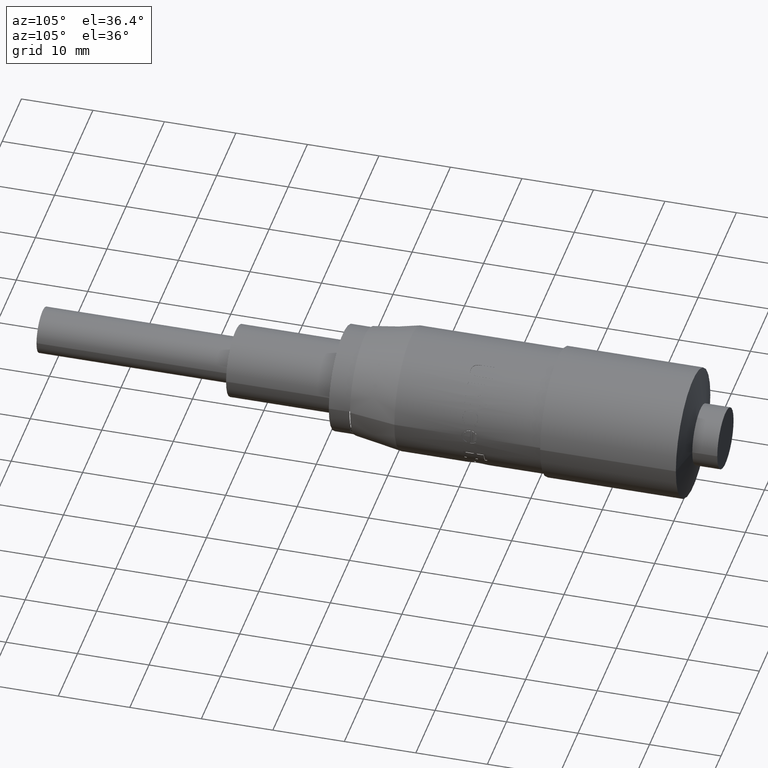
[diagram: clean part render]
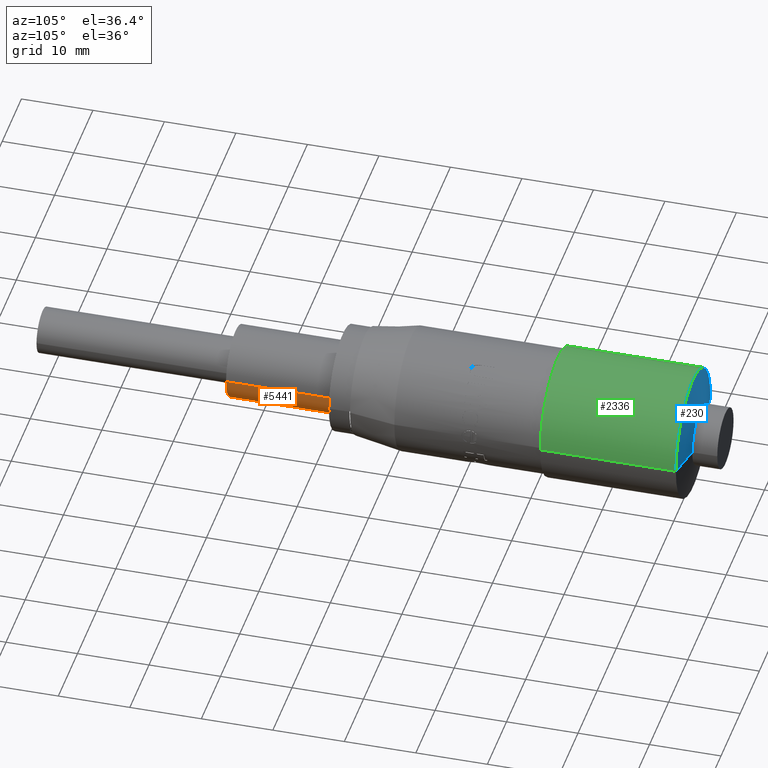
[diagram: same view with three faces highlighted in distinct colors, each labeled with its STEP entity id]
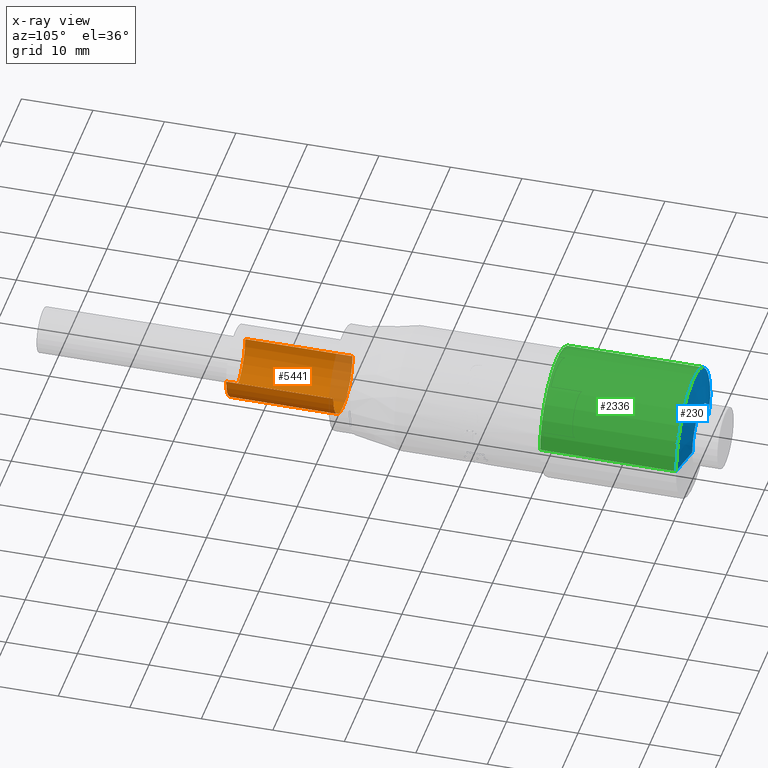
[diagram: x-ray of the same camera — body ghosted, the three highlighted faces saturated]
A machine part, auxiliary view with three faces highlighted in distinct colors.
The next image is the same camera in x-ray (body ghosted, the three faces saturated) — at least one of them is partly hidden behind the body in this view.
Their STEP definitions:

[orange] entity #5441 — the highlighted cylindrical surface (partial cylindrical patch) has radius 5 mm, axis along (-0, 1, -0).
#275 = ORIENTED_EDGE ( 'NONE', *, *, #10739, .F. ) ;
#458 = CARTESIAN_POINT ( 'NONE',  ( 38.65296289245996100, 68.06720585310775100, 28.87709965591409000 ) ) ;
#478 = CARTESIAN_POINT ( 'NONE',  ( 28.65296289245997100, 12.02618278390013300, 28.87709965591409000 ) ) ;
#790 = DIRECTION ( 'NONE',  ( -1.000000000000000000, 0.0000000000000000000, 0.0000000000000000000 ) ) ;
#1078 = ORIENTED_EDGE ( 'NONE', *, *, #8787, .F. ) ;
#1089 = CARTESIAN_POINT ( 'NONE',  ( 33.65296289245996800, 12.02618278390013300, 28.87709965591409000 ) ) ;
#1370 = FACE_OUTER_BOUND ( 'NONE', #3913, .T. ) ;
#1648 = DIRECTION ( 'NONE',  ( -1.058937486943297600E-016, 1.000000000000000000, -0.0000000000000000000 ) ) ;
#1893 = AXIS2_PLACEMENT_3D ( 'NONE', #3174, #9372, #4077 ) ;
#1987 = DIRECTION ( 'NONE',  ( -1.000000000000000000, 0.0000000000000000000, 0.0000000000000000000 ) ) ;
#2492 = VERTEX_POINT ( 'NONE', #5704 ) ;
#2603 = LINE ( 'NONE', #9658, #4942 ) ;
#2928 = CIRCLE ( 'NONE', #1893, 4.999999999999997300 ) ;
#3174 = CARTESIAN_POINT ( 'NONE',  ( 33.65296289245996800, -2.973817216099867300, 28.87709965591409000 ) ) ;
#3475 = DIRECTION ( 'NONE',  ( -1.058937486943297600E-016, 1.000000000000000000, -0.0000000000000000000 ) ) ;
#3913 = EDGE_LOOP ( 'NONE', ( #1078, #5259, #7385, #275 ) ) ;
#4077 = DIRECTION ( 'NONE',  ( -1.000000000000000000, -8.673617379884040400E-017, 0.0000000000000000000 ) ) ;
#4314 = VECTOR ( 'NONE', #11041, 1000.000000000000000 ) ;
#4942 = VECTOR ( 'NONE', #3475, 1000.000000000000000 ) ;
#5259 = ORIENTED_EDGE ( 'NONE', *, *, #10872, .T. ) ;
#5441 = ADVANCED_FACE ( 'NONE', ( #1370 ), #7305, .T. ) ;
#5704 = CARTESIAN_POINT ( 'NONE',  ( 28.65296289245997100, -2.973817216099867700, 28.87709965591409000 ) ) ;
#5752 = CARTESIAN_POINT ( 'NONE',  ( 38.65296289245996800, -2.973817216099866800, 28.87709965591409000 ) ) ;
#6383 = EDGE_CURVE ( 'NONE', #2492, #9553, #2603, .T. ) ;
#6949 = CARTESIAN_POINT ( 'NONE',  ( 33.65296289245996100, 68.06720585310775100, 28.87709965591409000 ) ) ;
#7282 = DIRECTION ( 'NONE',  ( -1.058937486943297600E-016, 1.000000000000000000, -0.0000000000000000000 ) ) ;
#7305 = CYLINDRICAL_SURFACE ( 'NONE', #8153, 4.999999999999997300 ) ;
#7385 = ORIENTED_EDGE ( 'NONE', *, *, #6383, .T. ) ;
#7582 = CARTESIAN_POINT ( 'NONE',  ( 38.65296289245996800, 12.02618278390013300, 28.87709965591409000 ) ) ;
#7789 = VERTEX_POINT ( 'NONE', #7582 ) ;
#8153 = AXIS2_PLACEMENT_3D ( 'NONE', #6949, #1648, #790 ) ;
#8480 = CIRCLE ( 'NONE', #8638, 4.999999999999997300 ) ;
#8638 = AXIS2_PLACEMENT_3D ( 'NONE', #1089, #7282, #1987 ) ;
#8787 = EDGE_CURVE ( 'NONE', #9548, #7789, #9005, .T. ) ;
#9005 = LINE ( 'NONE', #458, #4314 ) ;
#9372 = DIRECTION ( 'NONE',  ( -1.058937486943297600E-016, 1.000000000000000000, -0.0000000000000000000 ) ) ;
#9548 = VERTEX_POINT ( 'NONE', #5752 ) ;
#9553 = VERTEX_POINT ( 'NONE', #478 ) ;
#9658 = CARTESIAN_POINT ( 'NONE',  ( 28.65296289245996400, 68.06720585310775100, 28.87709965591409000 ) ) ;
#10739 = EDGE_CURVE ( 'NONE', #7789, #9553, #8480, .T. ) ;
#10872 = EDGE_CURVE ( 'NONE', #9548, #2492, #2928, .T. ) ;
#11041 = DIRECTION ( 'NONE',  ( -1.058937486943297600E-016, 1.000000000000000000, -0.0000000000000000000 ) ) ;

[blue] entity #230 — the highlighted conical surface has half-angle 77.863 deg.
#192 = DIRECTION ( 'NONE',  ( -1.000000000000000000, 0.0000000000000000000, 0.0000000000000000000 ) ) ;
#230 = ADVANCED_FACE ( 'NONE', ( #9806 ), #8706, .T. ) ;
#624 = CARTESIAN_POINT ( 'NONE',  ( 42.65296289245996800, 61.00467740755604500, 28.87709965591408000 ) ) ;
#1269 = ORIENTED_EDGE ( 'NONE', *, *, #4079, .F. ) ;
#1700 = DIRECTION ( 'NONE',  ( 1.058937486943297600E-016, -1.000000000000000000, 0.0000000000000000000 ) ) ;
#1923 = CIRCLE ( 'NONE', #8004, 4.250000000000000000 ) ;
#2132 = LINE ( 'NONE', #4206, #6841 ) ;
#2151 = EDGE_LOOP ( 'NONE', ( #5393, #7865, #7074, #1269 ) ) ;
#2374 = VECTOR ( 'NONE', #5962, 1000.000000000000000 ) ;
#2773 = VERTEX_POINT ( 'NONE', #11433 ) ;
#3238 = CARTESIAN_POINT ( 'NONE',  ( 24.65296289245995700, 61.00467740755604500, 28.87709965591408000 ) ) ;
#3373 = CARTESIAN_POINT ( 'NONE',  ( 29.40296289245996100, 62.02618278390013300, 28.87709965591408000 ) ) ;
#3777 = AXIS2_PLACEMENT_3D ( 'NONE', #8677, #1700, #9197 ) ;
#4079 = EDGE_CURVE ( 'NONE', #2773, #4323, #4704, .T. ) ;
#4094 = CARTESIAN_POINT ( 'NONE',  ( 33.65296289245996100, 62.02618278390013300, 28.87709965591408000 ) ) ;
#4206 = CARTESIAN_POINT ( 'NONE',  ( 29.40296289245996100, 62.02618278390013300, 28.87709965591408000 ) ) ;
#4323 = VERTEX_POINT ( 'NONE', #624 ) ;
#4704 = LINE ( 'NONE', #5804, #2374 ) ;
#4728 = EDGE_CURVE ( 'NONE', #5133, #2773, #1923, .T. ) ;
#4986 = DIRECTION ( 'NONE',  ( -1.000000000000000000, 0.0000000000000000000, 0.0000000000000000000 ) ) ;
#5133 = VERTEX_POINT ( 'NONE', #3373 ) ;
#5393 = ORIENTED_EDGE ( 'NONE', *, *, #4728, .F. ) ;
#5470 = DIRECTION ( 'NONE',  ( -1.058937486943297600E-016, 1.000000000000000000, -0.0000000000000000000 ) ) ;
#5528 = VERTEX_POINT ( 'NONE', #3238 ) ;
#5804 = CARTESIAN_POINT ( 'NONE',  ( 37.90296289245996800, 62.02618278390013300, 28.87709965591408000 ) ) ;
#5962 = DIRECTION ( 'NONE',  ( 0.9776483112944344100, -0.2102469486654697500, 0.0000000000000000000 ) ) ;
#6841 = VECTOR ( 'NONE', #10386, 1000.000000000000100 ) ;
#7074 = ORIENTED_EDGE ( 'NONE', *, *, #7169, .T. ) ;
#7169 = EDGE_CURVE ( 'NONE', #5528, #4323, #8219, .T. ) ;
#7865 = ORIENTED_EDGE ( 'NONE', *, *, #9842, .T. ) ;
#8004 = AXIS2_PLACEMENT_3D ( 'NONE', #4094, #10280, #4986 ) ;
#8219 = CIRCLE ( 'NONE', #10838, 9.000000000000001800 ) ;
#8677 = CARTESIAN_POINT ( 'NONE',  ( 33.65296289245996100, 62.02618278390013300, 28.87709965591408000 ) ) ;
#8706 = CONICAL_SURFACE ( 'NONE', #3777, 4.250000000000003600, 1.358968779313479000 ) ;
#9197 = DIRECTION ( 'NONE',  ( 1.000000000000000000, 0.0000000000000000000, 0.0000000000000000000 ) ) ;
#9806 = FACE_OUTER_BOUND ( 'NONE', #2151, .T. ) ;
#9842 = EDGE_CURVE ( 'NONE', #5133, #5528, #2132, .T. ) ;
#10280 = DIRECTION ( 'NONE',  ( -1.058937486943297600E-016, 1.000000000000000000, -0.0000000000000000000 ) ) ;
#10386 = DIRECTION ( 'NONE',  ( -0.9776483112944343000, -0.2102469486654699500, 1.197273875118544400E-016 ) ) ;
#10766 = CARTESIAN_POINT ( 'NONE',  ( 33.65296289245996100, 61.00467740755604500, 28.87709965591408000 ) ) ;
#10838 = AXIS2_PLACEMENT_3D ( 'NONE', #10766, #5470, #192 ) ;
#11433 = CARTESIAN_POINT ( 'NONE',  ( 37.90296289245996800, 62.02618278390013300, 28.87709965591408000 ) ) ;

[green] entity #2336 — the highlighted cylindrical surface (partial cylindrical patch) has radius 9 mm, axis along (-0, 1, -0).
#192 = DIRECTION ( 'NONE',  ( -1.000000000000000000, 0.0000000000000000000, 0.0000000000000000000 ) ) ;
#624 = CARTESIAN_POINT ( 'NONE',  ( 42.65296289245996800, 61.00467740755604500, 28.87709965591408000 ) ) ;
#811 = EDGE_CURVE ( 'NONE', #7598, #5528, #1517, .T. ) ;
#1478 = EDGE_CURVE ( 'NONE', #4470, #4323, #5097, .T. ) ;
#1517 = LINE ( 'NONE', #1656, #5654 ) ;
#1656 = CARTESIAN_POINT ( 'NONE',  ( 24.65296289245996100, 41.06720585310775100, 28.87709965591408000 ) ) ;
#1858 = ORIENTED_EDGE ( 'NONE', *, *, #7169, .F. ) ;
#2015 = CARTESIAN_POINT ( 'NONE',  ( 42.65296289245996100, 41.06720585310775100, 28.87709965591408000 ) ) ;
#2336 = ADVANCED_FACE ( 'NONE', ( #7017 ), #8243, .T. ) ;
#2368 = ORIENTED_EDGE ( 'NONE', *, *, #1478, .T. ) ;
#2551 = DIRECTION ( 'NONE',  ( -1.058937486943297600E-016, 1.000000000000000000, -0.0000000000000000000 ) ) ;
#2738 = VECTOR ( 'NONE', #9082, 1000.000000000000000 ) ;
#2826 = CIRCLE ( 'NONE', #8549, 9.000000000000001800 ) ;
#3238 = CARTESIAN_POINT ( 'NONE',  ( 24.65296289245995700, 61.00467740755604500, 28.87709965591408000 ) ) ;
#3615 = CARTESIAN_POINT ( 'NONE',  ( 33.65296289245996100, 41.06720585310775100, 28.87709965591408000 ) ) ;
#3863 = ORIENTED_EDGE ( 'NONE', *, *, #811, .F. ) ;
#3977 = DIRECTION ( 'NONE',  ( -1.058937486943297600E-016, 1.000000000000000000, -0.0000000000000000000 ) ) ;
#4323 = VERTEX_POINT ( 'NONE', #624 ) ;
#4414 = CARTESIAN_POINT ( 'NONE',  ( 42.65296289245996100, 42.02618278390012600, 28.87709965591408000 ) ) ;
#4470 = VERTEX_POINT ( 'NONE', #4414 ) ;
#5068 = AXIS2_PLACEMENT_3D ( 'NONE', #3615, #6267, #9807 ) ;
#5097 = LINE ( 'NONE', #2015, #2738 ) ;
#5375 = ORIENTED_EDGE ( 'NONE', *, *, #9020, .T. ) ;
#5470 = DIRECTION ( 'NONE',  ( -1.058937486943297600E-016, 1.000000000000000000, -0.0000000000000000000 ) ) ;
#5528 = VERTEX_POINT ( 'NONE', #3238 ) ;
#5654 = VECTOR ( 'NONE', #2551, 1000.000000000000000 ) ;
#6267 = DIRECTION ( 'NONE',  ( -1.058937486943297600E-016, 1.000000000000000000, -0.0000000000000000000 ) ) ;
#7017 = FACE_OUTER_BOUND ( 'NONE', #10842, .T. ) ;
#7169 = EDGE_CURVE ( 'NONE', #5528, #4323, #8219, .T. ) ;
#7598 = VERTEX_POINT ( 'NONE', #7832 ) ;
#7832 = CARTESIAN_POINT ( 'NONE',  ( 24.65296289245996100, 42.02618278390012600, 28.87709965591408000 ) ) ;
#8219 = CIRCLE ( 'NONE', #10838, 9.000000000000001800 ) ;
#8243 = CYLINDRICAL_SURFACE ( 'NONE', #5068, 9.000000000000001800 ) ;
#8549 = AXIS2_PLACEMENT_3D ( 'NONE', #9287, #3977, #10170 ) ;
#9020 = EDGE_CURVE ( 'NONE', #7598, #4470, #2826, .T. ) ;
#9082 = DIRECTION ( 'NONE',  ( -1.058937486943297600E-016, 1.000000000000000000, -0.0000000000000000000 ) ) ;
#9287 = CARTESIAN_POINT ( 'NONE',  ( 33.65296289245996100, 42.02618278390012600, 28.87709965591408000 ) ) ;
#9807 = DIRECTION ( 'NONE',  ( -1.000000000000000000, 0.0000000000000000000, 0.0000000000000000000 ) ) ;
#10170 = DIRECTION ( 'NONE',  ( -1.000000000000000000, 0.0000000000000000000, 0.0000000000000000000 ) ) ;
#10766 = CARTESIAN_POINT ( 'NONE',  ( 33.65296289245996100, 61.00467740755604500, 28.87709965591408000 ) ) ;
#10838 = AXIS2_PLACEMENT_3D ( 'NONE', #10766, #5470, #192 ) ;
#10842 = EDGE_LOOP ( 'NONE', ( #5375, #2368, #1858, #3863 ) ) ;